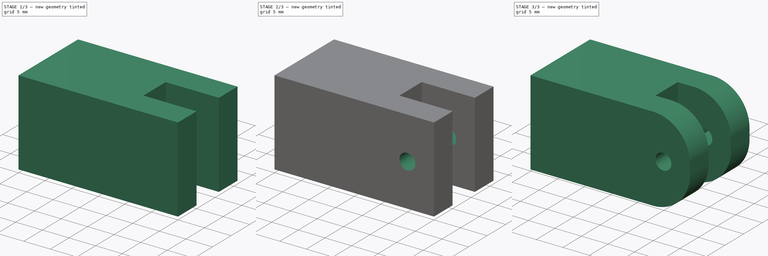
[diagram: build sequence overview — one tinted view per stage of 3, left to right]
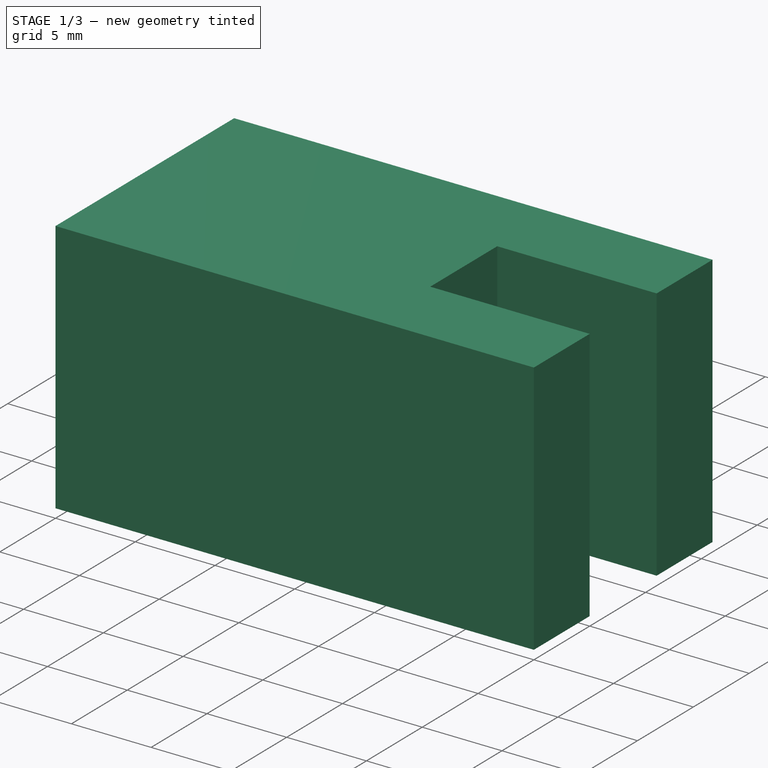
[diagram: stage 1 of 3 — iso view after this stage's code; geometry added in this stage tinted green]
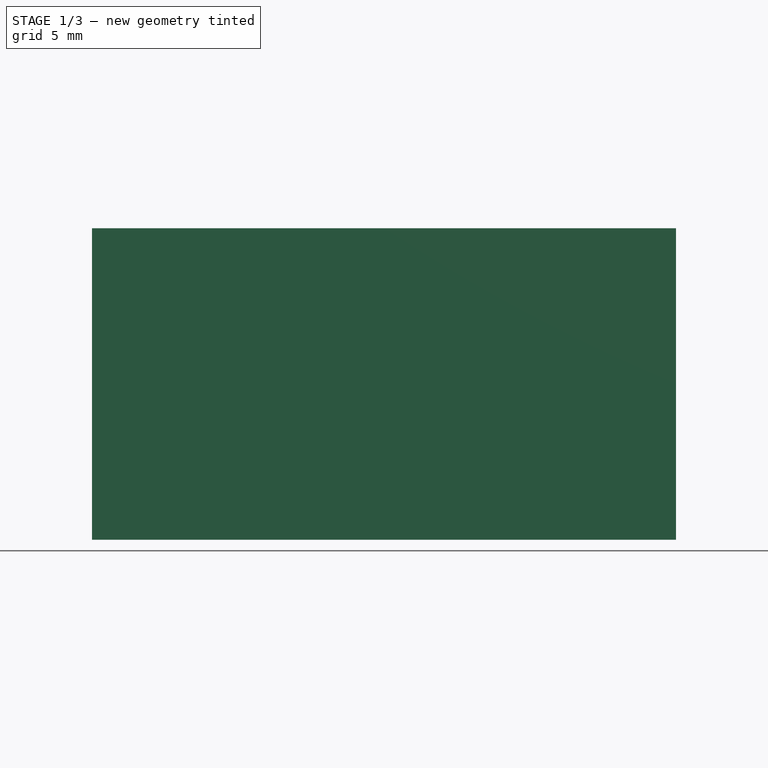
[diagram: stage 1 of 3 — front view after this stage's code; geometry added in this stage tinted green]
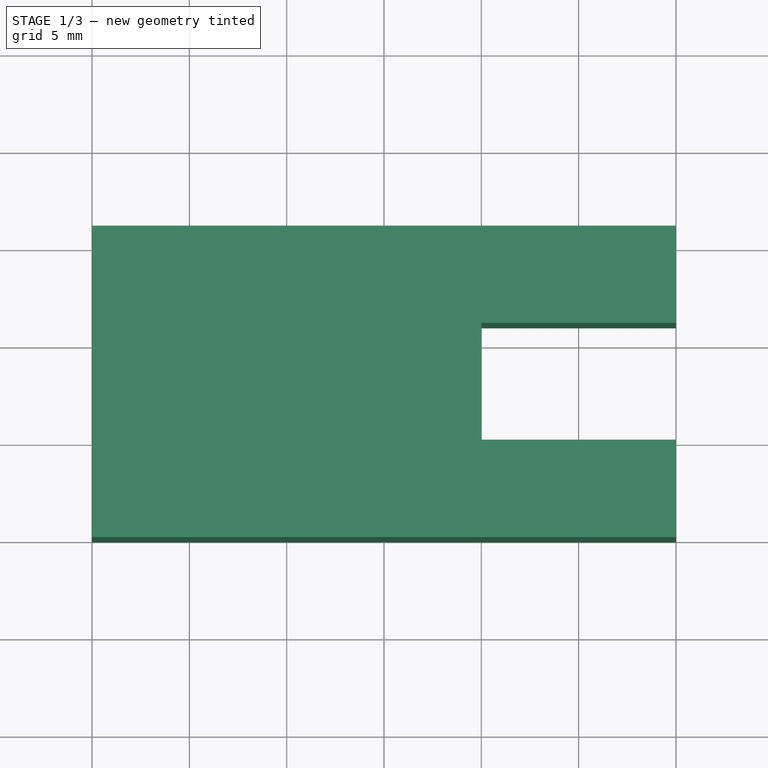
[diagram: stage 1 of 3 — top view after this stage's code; geometry added in this stage tinted green]
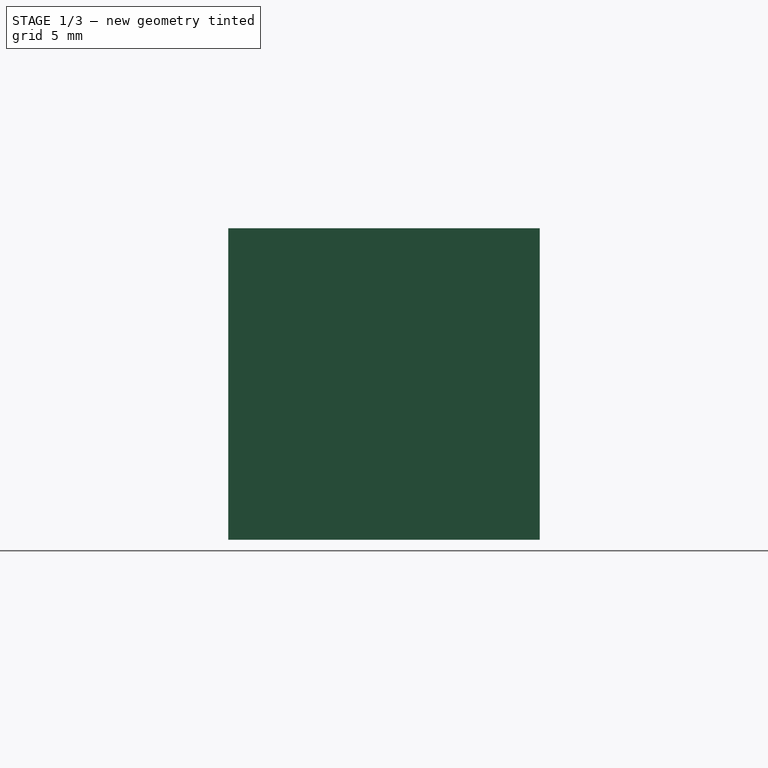
[diagram: stage 1 of 3 — right view after this stage's code; geometry added in this stage tinted green]
FCSTD DOCUMENT  (FreeCAD 0.16R6712 (Git))
Label: Держатель индикатора часть 2
License: All rights reserved
LicenseURL: http://en.wikipedia.org/wiki/All_rights_reserved
objects: Sketcher::SketchObject×4, PartDesign::Pocket×4, Part::Box×1, PartDesign::Fillet×1
note: 14 computed .brp shape members not serialized (recipe doc carries the construction recipe); baked Part::Feature solids carry a one-line shape summary decoded from their .brp

FEATURE [Part::Box] Box  label="Куб"
  Height = 16
  Length = 30
  Width = 16
FEATURE [Sketcher::SketchObject] Sketch
  ExternalGeometry = -> [Box]
  Placement = pos=(0,0,16) rot=(0,0,1;0rad)
  Support = -> Box [Face6]
  sketch-geometry (5):
    g0: LineSegment [constr] StartX=0 StartY=8 StartZ=0 EndX=29.9676 EndY=8 EndZ=0
    g1: LineSegment StartX=20 StartY=11 StartZ=0 EndX=31.9482 EndY=11 EndZ=0
    g2: LineSegment StartX=31.9482 StartY=11 StartZ=0 EndX=31.9482 EndY=5 EndZ=0
    g3: LineSegment StartX=31.9482 StartY=5 StartZ=0 EndX=20 EndY=5 EndZ=0
    g4: LineSegment StartX=20 StartY=5 StartZ=0 EndX=20 EndY=11 EndZ=0
  constraints (13):
    c: PointOnObject(g0,g-3)
    c: Symmetric(g-3,g-1,g0)
    c: Coincident(g1,g2)
    c: Coincident(g2,g3)
    c: Coincident(g3,g4)
    c: Coincident(g4,g1)
    c: Horizontal(g1)
    c: Horizontal(g3)
    c: Vertical(g2)
    c: Vertical(g4)
    c: DistanceY(g2,g1) = 6
    c: Symmetric(g1,g3,g0)
    c: DistanceX(g0,g3) = 20
FEATURE [PartDesign::Pocket] Pocket
  Length = 5
  Sketch = -> Sketch
  Type = 1
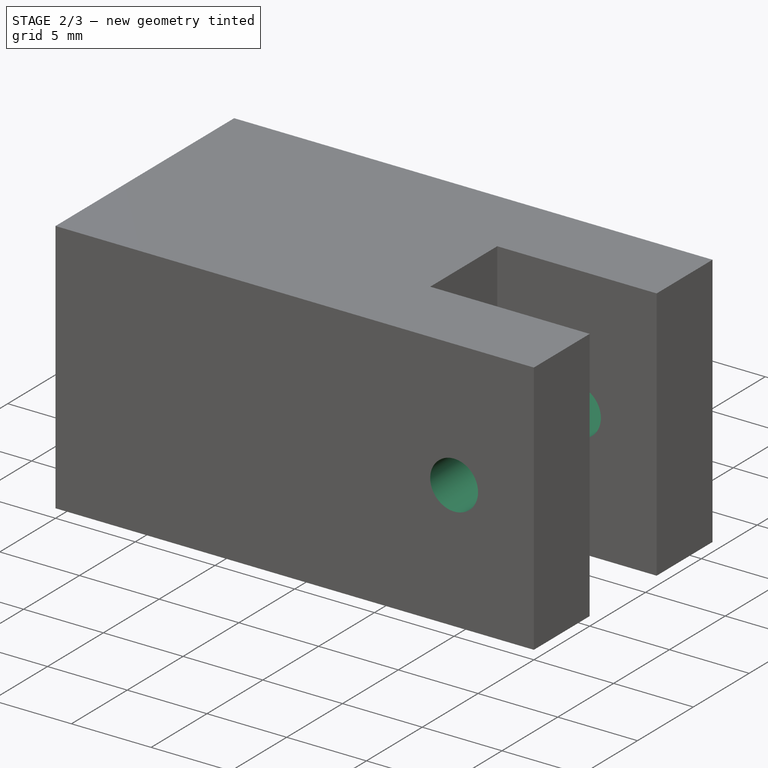
[diagram: stage 2 of 3 — iso view after this stage's code; geometry added in this stage tinted green]
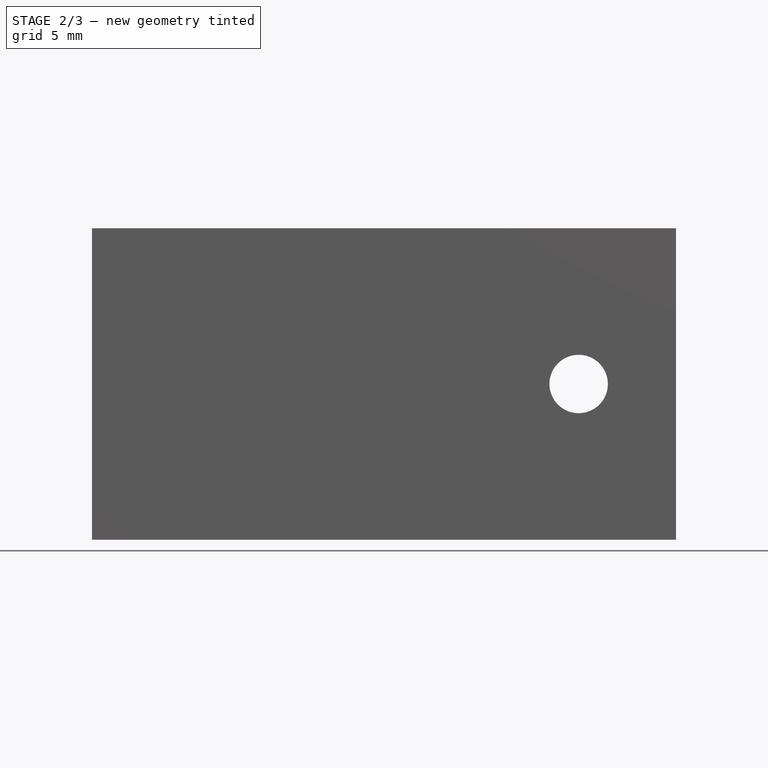
[diagram: stage 2 of 3 — front view after this stage's code; geometry added in this stage tinted green]
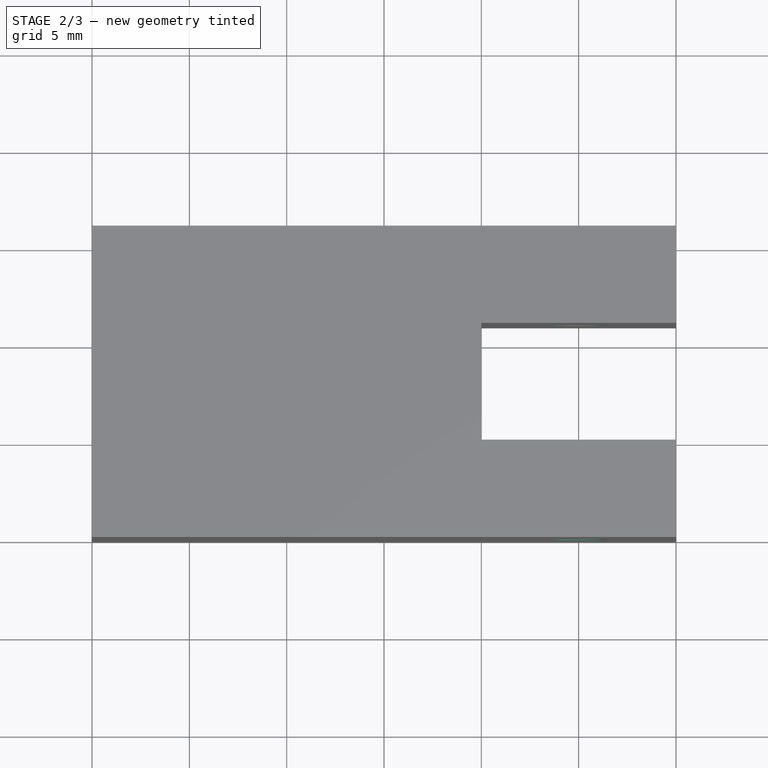
[diagram: stage 2 of 3 — top view after this stage's code; geometry added in this stage tinted green]
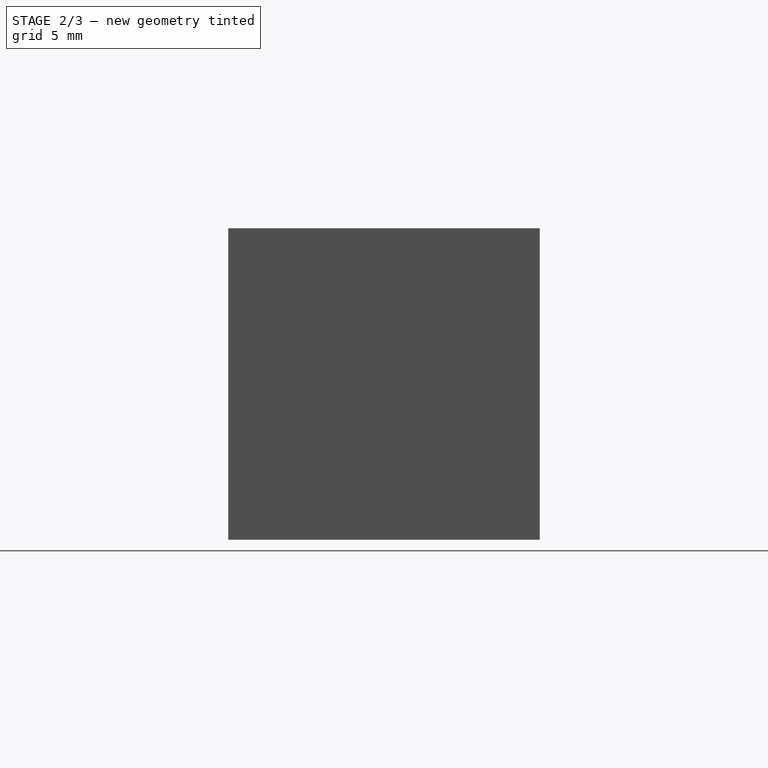
[diagram: stage 2 of 3 — right view after this stage's code; geometry added in this stage tinted green]
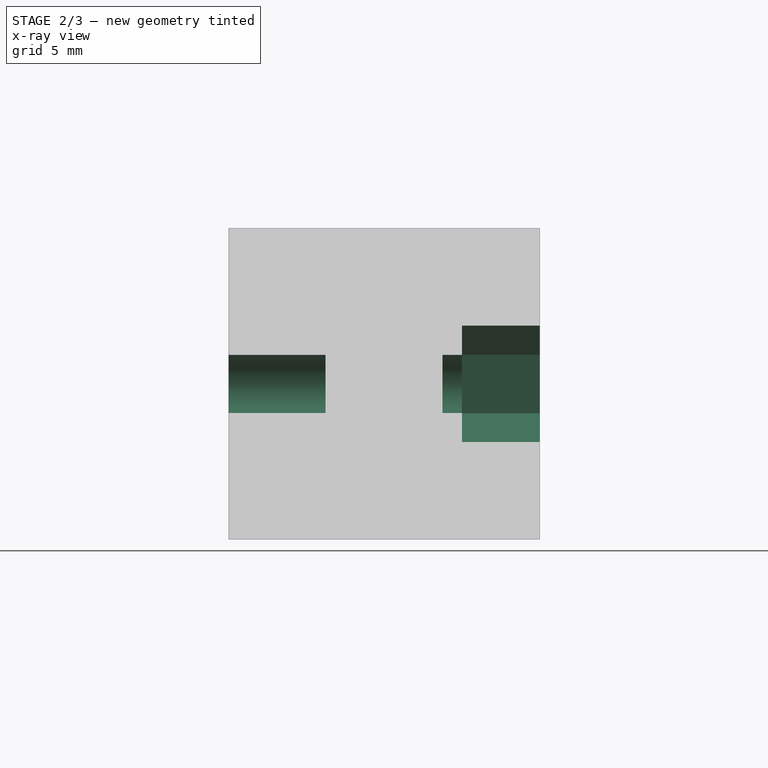
[diagram: stage 2 of 3 — x-ray composite at the right view; earlier geometry ghosted, this stage's added geometry solid]
FEATURE [Sketcher::SketchObject] Sketch001
  ExternalGeometry = -> [Pocket]
  Placement = pos=(0,16,0) rot=(0,0.707107,0.707107;3.14159rad)
  Support = -> Pocket [Face4]
  sketch-geometry (9):
    g0: LineSegment [constr] StartX=-27.8965 StartY=8 StartZ=0 EndX=-21.3371 EndY=8 EndZ=0
    g1: LineSegment [constr] StartX=-25 StartY=11.6415 StartZ=0 EndX=-25 EndY=4.10753 EndZ=0
    g2: LineSegment StartX=-27.5981 StartY=6.5 StartZ=0 EndX=-25 EndY=5 EndZ=0
    g3: LineSegment StartX=-25 StartY=5 StartZ=0 EndX=-22.4019 EndY=6.5 EndZ=0
    g4: LineSegment StartX=-22.4019 StartY=6.5 StartZ=0 EndX=-22.4019 EndY=9.5 EndZ=0
    g5: LineSegment StartX=-22.4019 StartY=9.5 StartZ=0 EndX=-25 EndY=11 EndZ=0
    g6: LineSegment StartX=-25 StartY=11 StartZ=0 EndX=-27.5981 EndY=9.5 EndZ=0
    g7: LineSegment StartX=-27.5981 StartY=9.5 StartZ=0 EndX=-27.5981 EndY=6.5 EndZ=0
    g8: Circle [constr] CenterX=-25 CenterY=8 CenterZ=0 NormalX=0 NormalY=0 NormalZ=1 Radius=3
  constraints (21):
    c: Horizontal(g0)
    c: Vertical(g1)
    c: Symmetric(g-3,g-1,g0)
    c: DistanceX(g1,g-1) = 25
    c: Coincident(g2,g3)
    c: Coincident(g3,g4)
    c: Coincident(g4,g5)
    c: Coincident(g5,g6)
    c: Coincident(g6,g7)
    c: Coincident(g7,g2)
    c: Equal(g2, g3-g7) x5
    c: PointOnObject(g2,g8)
    c: PointOnObject(g3,g8)
    c: PointOnObject(g4,g8)
    c: PointOnObject(g5,g8)
    c: PointOnObject(g6,g8)
    c: PointOnObject(g7,g8)
    c: Vertical(g7)
    c: Radius(g8) = 3
    c: PointOnObject(g8,g0)
    c: PointOnObject(g8,g1)
FEATURE [PartDesign::Pocket] Pocket001
  Length = 4
  Sketch = -> Sketch001
  Type = 0
FEATURE [Sketcher::SketchObject] Sketch002
  ExternalGeometry = -> [Pocket001]
  Placement = pos=(0,12,0) rot=(0,0.707107,0.707107;3.14159rad)
  Support = -> Pocket001 [Face17]
  sketch-geometry (3):
    g0: LineSegment [constr] StartX=-25 StartY=11 StartZ=0 EndX=-25 EndY=5 EndZ=0
    g1: LineSegment [constr] StartX=-22.4019 StartY=6.5 StartZ=0 EndX=-27.5981 EndY=9.5 EndZ=0
    g2: Circle CenterX=-25 CenterY=8 CenterZ=0 NormalX=0 NormalY=0 NormalZ=1 Radius=1.5
  constraints (7):
    c: Coincident(g0,g-3)
    c: Coincident(g0,g-4)
    c: Coincident(g1,g-4)
    c: Coincident(g1,g-3)
    c: PointOnObject(g2,g0)
    c: Radius(g2) = 1.5
    c: PointOnObject(g2,g1)
FEATURE [PartDesign::Pocket] Pocket002
  Length = 5
  Sketch = -> Sketch002
  Type = 1
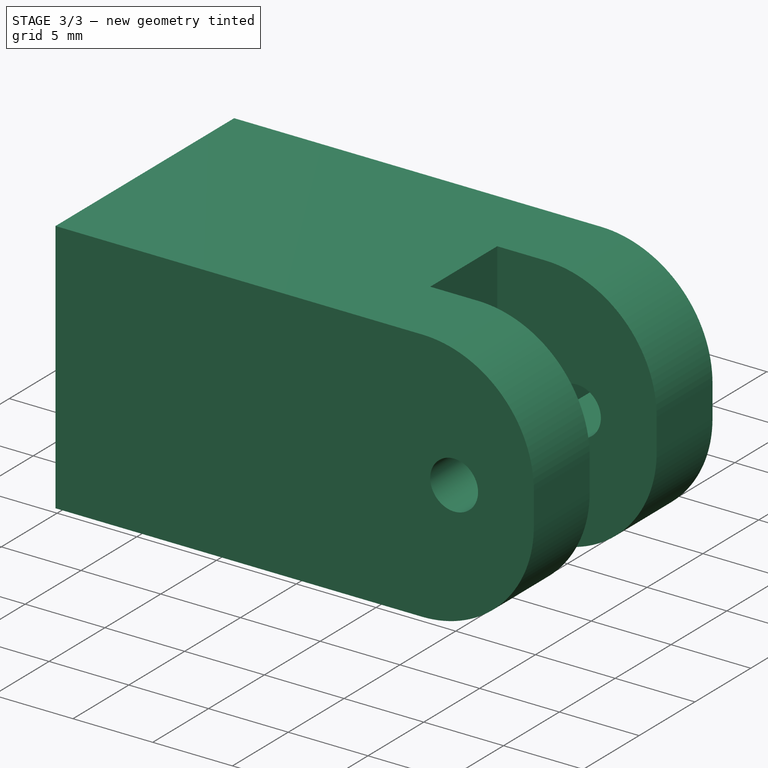
[diagram: stage 3 of 3 — iso view after this stage's code; geometry added in this stage tinted green]
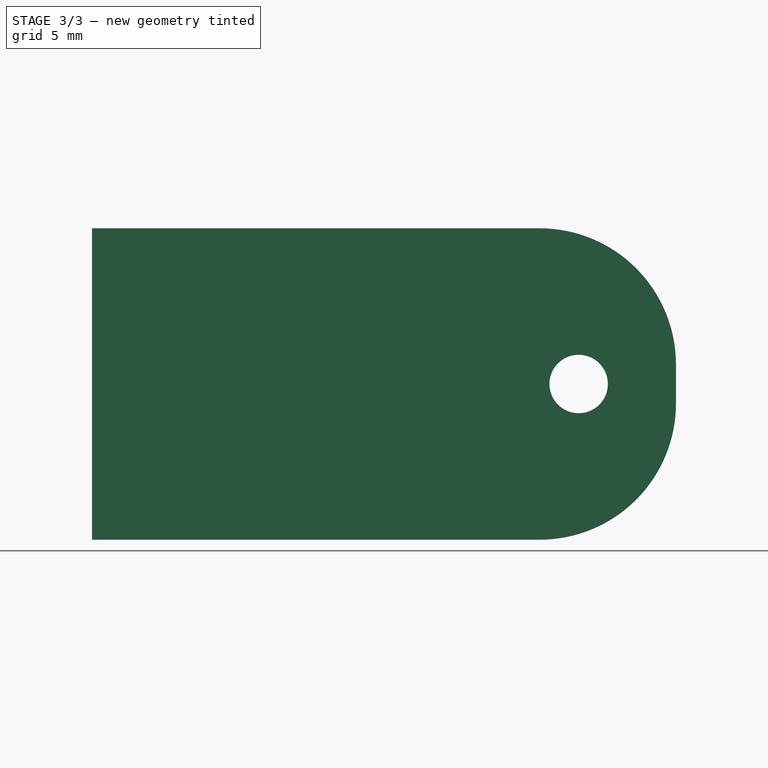
[diagram: stage 3 of 3 — front view after this stage's code; geometry added in this stage tinted green]
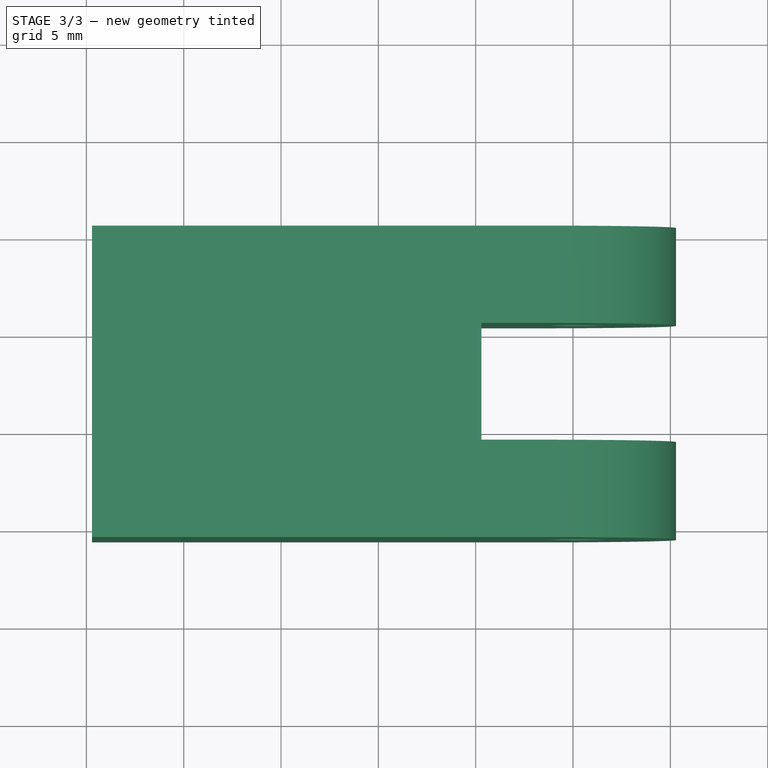
[diagram: stage 3 of 3 — top view after this stage's code; geometry added in this stage tinted green]
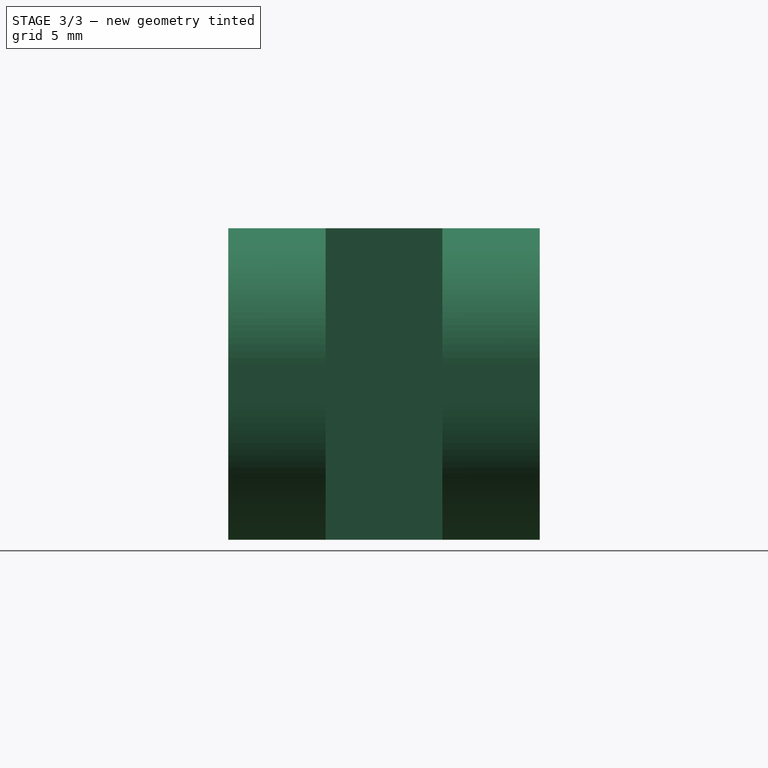
[diagram: stage 3 of 3 — right view after this stage's code; geometry added in this stage tinted green]
FEATURE [Sketcher::SketchObject] Sketch003
  ExternalGeometry = -> [Pocket002]
  Placement = pos=(0,0,0) rot=(0.57735,-0.57735,-0.57735;2.0944rad)
  Support = -> Pocket002 [Face1]
  sketch-geometry (3):
    g0: LineSegment [constr] StartX=-16 StartY=16 StartZ=0 EndX=0 EndY=0 EndZ=0
    g1: LineSegment [constr] StartX=-16 StartY=0 StartZ=0 EndX=0 EndY=16 EndZ=0
    g2: Circle CenterX=-8 CenterY=8 CenterZ=0 NormalX=0 NormalY=0 NormalZ=1 Radius=4
  constraints (7):
    c: Coincident(g0,g-3)
    c: Coincident(g0,g-1)
    c: Coincident(g1,g-4)
    c: Coincident(g1,g-3)
    c: PointOnObject(g2,g0)
    c: Radius(g2) = 4
    c: PointOnObject(g2,g1)
FEATURE [PartDesign::Pocket] Pocket003
  Length = 10
  Sketch = -> Sketch003
  Type = 0
FEATURE [PartDesign::Fillet] Fillet
  Base = -> Pocket003 [Edge11,Edge15,Edge17,Edge21]
  Placement = pos=(35.2885,-10.5526,18.1689) rot=(0,0,1;0rad)
  Radius = 7
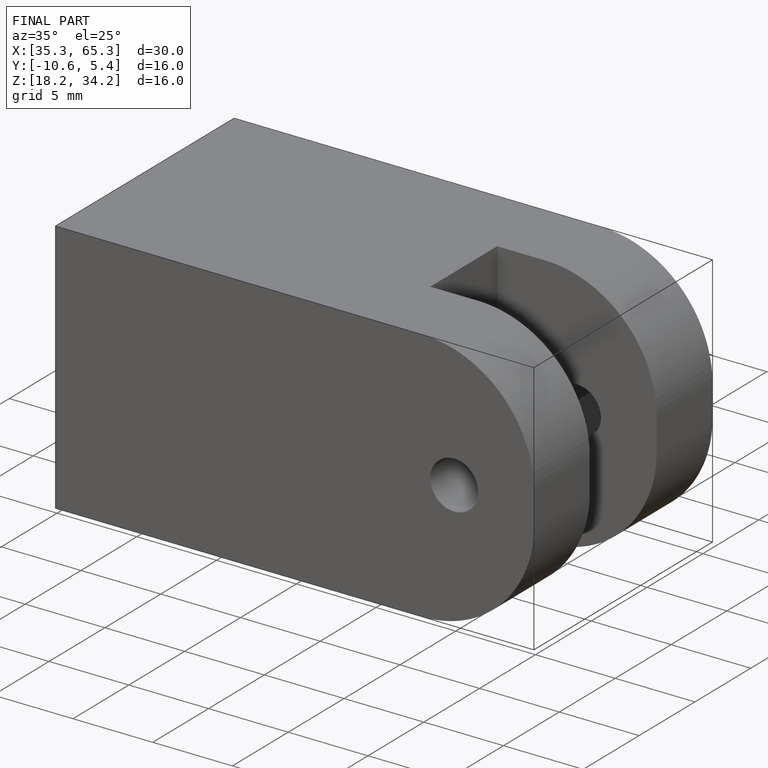
[diagram: finished part — iso view with bounding-box wireframe]
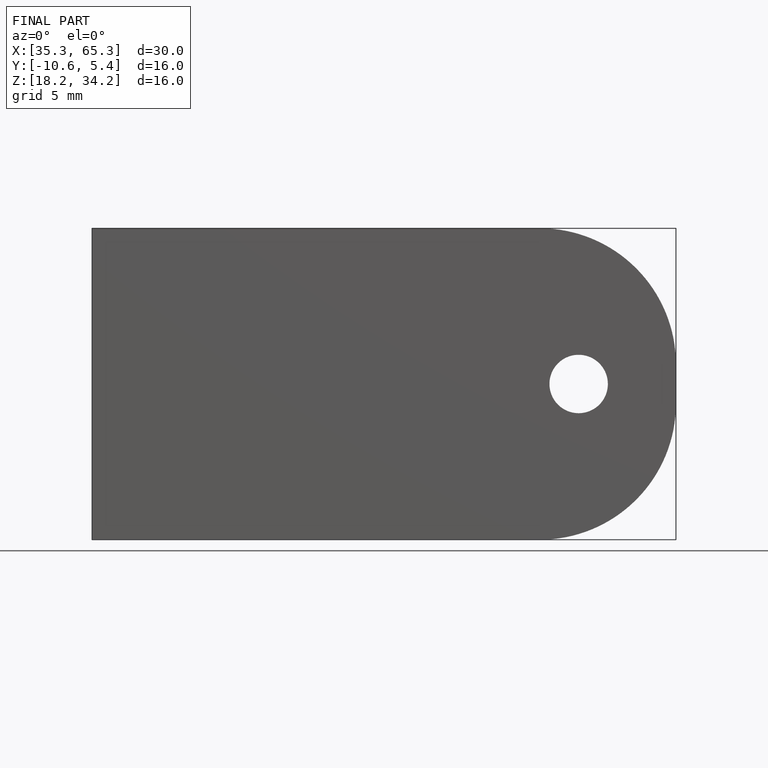
[diagram: finished part — front view with bounding-box wireframe]
